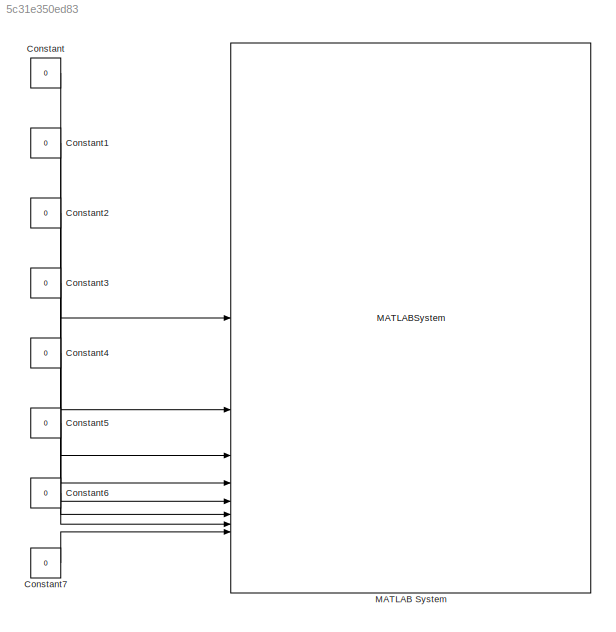
MODEL slx_5c31e350ed83
KIND model
CONFIG AbsTol = auto
CONFIG EnableMultiTasking = off
CONFIG FixedStep = 0.01
CONFIG MaxStep = auto
CONFIG MinStep = auto
CONFIG RelTol = 1e-3
CONFIG SampleTimeConstraint = Unconstrained
CONFIG SolverName = FixedStepAuto
CONFIG StartTime = 0.0
CONFIG StopTime = inf
BLOCK [Constant] Constant
  Value = 0
BLOCK [Constant] Constant1
  Value = 0
BLOCK [Constant] Constant2
  Value = 0
BLOCK [Constant] Constant3
  Value = 0
BLOCK [Constant] Constant4
  Value = 0
BLOCK [Constant] Constant5
  Value = 0
BLOCK [Constant] Constant6
  Value = 0
BLOCK [Constant] Constant7
  Value = 0
BLOCK [MATLABSystem] MATLAB System
  MaskDisplay = disp('PWM_Write');\nport_label('input',1,'u1');\nport_label('input',2,'u2');\nport_label('input',3,'u3');\nport_label('input',4,'u4');\nport_label('input',5,'u5');\nport_label('input',6,'u6');\nport_label('input',7,'u7');\nport_label('input',8,'u8');
  MaskType = PWM_Write
  System = PWM_Write
LINE Constant1:1 -> MATLAB System:2
LINE Constant2:1 -> MATLAB System:3
LINE Constant3:1 -> MATLAB System:4
LINE Constant4:1 -> MATLAB System:5
LINE Constant5:1 -> MATLAB System:6
LINE Constant6:1 -> MATLAB System:7
LINE Constant7:1 -> MATLAB System:8
LINE Constant:1 -> MATLAB System:1
